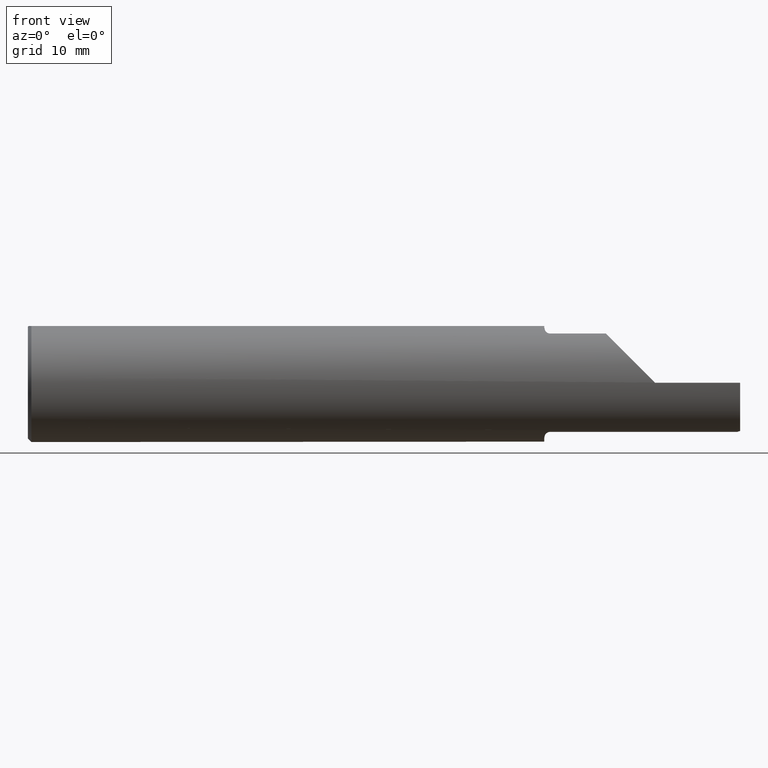
[diagram: clean part render]
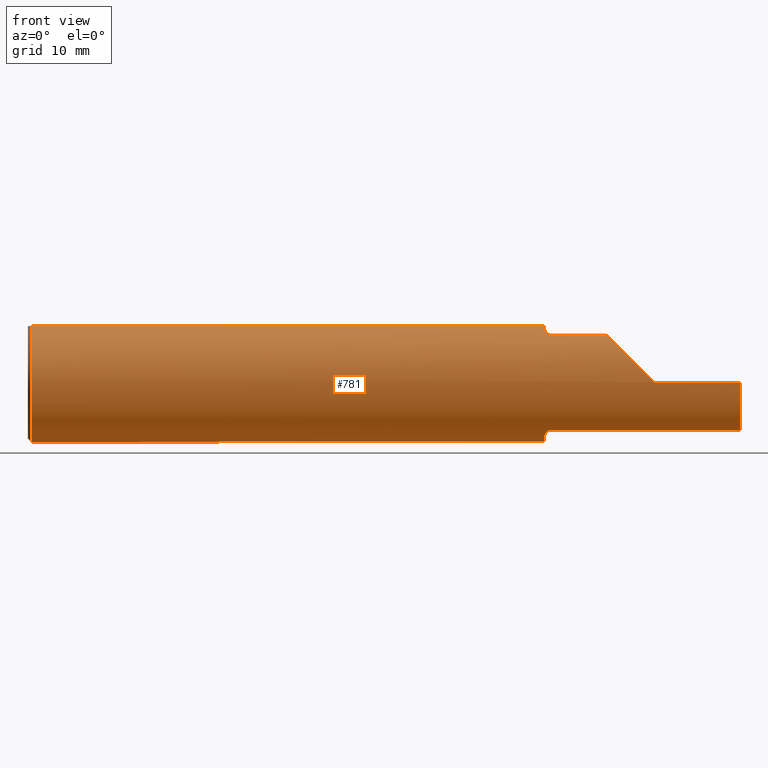
[diagram: same view with one face highlighted and labeled with its STEP entity id]
A machine part, front view. The second image highlights one B-rep face of the part: STEP entity #781.
In plain terms, the highlighted cylindrical surface (partial cylindrical patch) has radius 6.3462 mm, axis along (-1, -0, -0).
Its self-contained STEP definition (entity closure, byte-faithful):
#13 = CARTESIAN_POINT ( 'NONE',  ( 2.175000000000000266, -0.09417762792835078500, -0.2314253821274770972 ) ) ;
#21 = VERTEX_POINT ( 'NONE', #480 ) ;
#29 = VERTEX_POINT ( 'NONE', #417 ) ;
#31 = LINE ( 'NONE', #612, #525 ) ;
#35 = CARTESIAN_POINT ( 'NONE',  ( 2.183603512678597092, -0.1369436784278610930, -0.2090374349053132075 ) ) ;
#40 = DIRECTION ( 'NONE',  ( -1.000000000000000000, -0.000000000000000000, -0.000000000000000000 ) ) ;
#46 = CIRCLE ( 'NONE', #942, 0.2498499999999999888 ) ;
#52 = VERTEX_POINT ( 'NONE', #702 ) ;
#56 = VERTEX_POINT ( 'NONE', #275 ) ;
#60 = EDGE_CURVE ( 'NONE', #21, #519, #488, .T. ) ;
#64 = AXIS2_PLACEMENT_3D ( 'NONE', #726, #590, #441 ) ;
#67 = EDGE_CURVE ( 'NONE', #778, #810, #406, .T. ) ;
#68 = CARTESIAN_POINT ( 'NONE',  ( 2.175056834358316760, -0.09685000000000180964, 0.2303152187763536918 ) ) ;
#70 = CARTESIAN_POINT ( 'NONE',  ( 2.188126455499453282, -0.1431912086441300413, 0.2047622941394795781 ) ) ;
#76 = EDGE_CURVE ( 'NONE', #21, #885, #813, .T. ) ;
#88 = CARTESIAN_POINT ( 'NONE',  ( 3.000000000000000444, -0.1494886164171398690, -0.2001953447552895227 ) ) ;
#104 = AXIS2_PLACEMENT_3D ( 'NONE', #117, #40, #621 ) ;
#116 = LINE ( 'NONE', #404, #435 ) ;
#117 = CARTESIAN_POINT ( 'NONE',  ( 3.000000000000000444, 0.000000000000000000, 0.000000000000000000 ) ) ;
#122 = CIRCLE ( 'NONE', #64, 0.2498499999999999888 ) ;
#129 = CARTESIAN_POINT ( 'NONE',  ( 2.175361372780717062, -0.1075719347965366363, -0.2258065311153257260 ) ) ;
#131 = ORIENTED_EDGE ( 'NONE', *, *, #134, .T. ) ;
#132 = DIRECTION ( 'NONE',  ( 1.000000000000000000, 0.000000000000000000, 0.000000000000000000 ) ) ;
#134 = EDGE_CURVE ( 'NONE', #416, #601, #116, .T. ) ;
#158 = ORIENTED_EDGE ( 'NONE', *, *, #550, .T. ) ;
#160 = DIRECTION ( 'NONE',  ( -1.000000000000000000, -0.000000000000000000, -0.000000000000000000 ) ) ;
#173 = LINE ( 'NONE', #241, #894 ) ;
#174 = ORIENTED_EDGE ( 'NONE', *, *, #877, .T. ) ;
#182 = ORIENTED_EDGE ( 'NONE', *, *, #224, .F. ) ;
#183 = CARTESIAN_POINT ( 'NONE',  ( 2.188098364138955532, -0.1431579111149089145, -0.2047855815810830926 ) ) ;
#187 = VERTEX_POINT ( 'NONE', #733 ) ;
#189 = CARTESIAN_POINT ( 'NONE',  ( 0.01500000000000188856, 0.000000000000000000, -0.2498499999999999888 ) ) ;
#194 = ORIENTED_EDGE ( 'NONE', *, *, #76, .F. ) ;
#206 = B_SPLINE_CURVE_WITH_KNOTS ( 'NONE', 3,
 ( #780, #129, #703, #830, #35, #183, #446, #522, #736, #668 ),
 .UNSPECIFIED., .F., .F.,
 ( 4, 2, 2, 2, 4 ),
 ( 0.0001090155944137358965, 0.0009865223614607978014, 0.001425275744984329587, 0.001644652436746094504, 0.001864029128507859422 ),
 .UNSPECIFIED. ) ;
#212 = AXIS2_PLACEMENT_3D ( 'NONE', #722, #308, #657 ) ;
#224 = EDGE_CURVE ( 'NONE', #29, #452, #928, .T. ) ;
#232 = CARTESIAN_POINT ( 'NONE',  ( 2.175056834358316316, -0.09684999999998002151, -0.2303152187763627956 ) ) ;
#233 = ORIENTED_EDGE ( 'NONE', *, *, #60, .T. ) ;
#241 = CARTESIAN_POINT ( 'NONE',  ( 3.000000000000000444, -0.07331916529803135518, 0.2388499999999998957 ) ) ;
#249 = VERTEX_POINT ( 'NONE', #431 ) ;
#255 = VERTEX_POINT ( 'NONE', #302 ) ;
#256 = EDGE_CURVE ( 'NONE', #827, #601, #122, .T. ) ;
#257 = CARTESIAN_POINT ( 'NONE',  ( 2.488914555052665456, -0.2134487348307804455, 0.1524354449473348527 ) ) ;
#259 = B_SPLINE_CURVE_WITH_KNOTS ( 'NONE', 3,
 ( #935, #571, #360, #422, #70, #507, #646, #636, #862, #68 ),
 .UNSPECIFIED., .F., .F.,
 ( 4, 2, 2, 2, 4 ),
 ( 0.000000000000000000, 0.0002232479344833600363, 0.0004464958689667200727, 0.0008929917379334389527, 0.001785983475866874436 ),
 .UNSPECIFIED. ) ;
#268 = CARTESIAN_POINT ( 'NONE',  ( 2.441154655244710980, -0.1494886164171400911, 0.2001953447552893839 ) ) ;
#275 = CARTESIAN_POINT ( 'NONE',  ( 2.640000000000000124, -0.2498463527850666721, 0.001349999999999153743 ) ) ;
#276 = LINE ( 'NONE', #470, #739 ) ;
#289 = CARTESIAN_POINT ( 'NONE',  ( 2.640000000000000124, -0.2498499999999999610, -6.123031769111885058E-17 ) ) ;
#292 = AXIS2_PLACEMENT_3D ( 'NONE', #512, #509, #720 ) ;
#302 = CARTESIAN_POINT ( 'NONE',  ( 2.175056834358316760, -0.09685000000000180964, 0.2303152187763536918 ) ) ;
#308 = DIRECTION ( 'NONE',  ( 1.000000000000000000, -0.000000000000000000, -0.000000000000000000 ) ) ;
#311 = EDGE_CURVE ( 'NONE', #827, #249, #688, .T. ) ;
#315 = ORIENTED_EDGE ( 'NONE', *, *, #854, .T. ) ;
#358 = CARTESIAN_POINT ( 'NONE',  ( 2.175056834358316760, -0.09685000000000180964, 0.2303152187763536918 ) ) ;
#360 = CARTESIAN_POINT ( 'NONE',  ( 2.194274813964109061, -0.1483055201436096204, 0.2010828477691847527 ) ) ;
#381 = ORIENTED_EDGE ( 'NONE', *, *, #67, .T. ) ;
#398 = EDGE_CURVE ( 'NONE', #810, #416, #622, .T. ) ;
#404 = CARTESIAN_POINT ( 'NONE',  ( 3.000000000000000444, 0.07331916529803135518, 0.2388499999999998957 ) ) ;
#406 = CIRCLE ( 'NONE', #909, 0.2498499999999999888 ) ;
#416 = VERTEX_POINT ( 'NONE', #511 ) ;
#417 = CARTESIAN_POINT ( 'NONE',  ( 2.175000000000000266, -0.07331916529803114702, 0.2388499999999999790 ) ) ;
#418 = CARTESIAN_POINT ( 'NONE',  ( 2.441154655244710980, -0.1494886164171400911, 0.2001953447552893839 ) ) ;
#422 = CARTESIAN_POINT ( 'NONE',  ( 2.189875278575876827, -0.1451430425960587578, 0.2033773245914853312 ) ) ;
#431 = CARTESIAN_POINT ( 'NONE',  ( 2.175056834358316316, -0.09684999999998002151, -0.2303152187763627956 ) ) ;
#435 = VECTOR ( 'NONE', #132, 39.37007874015748143 ) ;
#440 = EDGE_CURVE ( 'NONE', #519, #56, #46, .T. ) ;
#441 = DIRECTION ( 'NONE',  ( 0.000000000000000000, 0.000000000000000000, -1.000000000000000000 ) ) ;
#446 = CARTESIAN_POINT ( 'NONE',  ( 2.189804601073712220, -0.1450778299404785754, -0.2034240810360764262 ) ) ;
#452 = VERTEX_POINT ( 'NONE', #549 ) ;
#468 = B_SPLINE_CURVE_WITH_KNOTS ( 'NONE', 3,
 ( #358, #653, #927, #796 ),
 .UNSPECIFIED., .F., .F.,
 ( 4, 4 ),
 ( 0.001785983475866874436, 0.001896829427359323760 ),
 .UNSPECIFIED. ) ;
#470 = CARTESIAN_POINT ( 'NONE',  ( 2.517500000000000071, -0.1494886164171399245, 0.2001953447552894949 ) ) ;
#477 = EDGE_CURVE ( 'NONE', #255, #452, #468, .T. ) ;
#480 = CARTESIAN_POINT ( 'NONE',  ( 3.000000000000000444, -0.2498499999999999055, -6.123031769111886291E-17 ) ) ;
#482 =( BOUNDED_CURVE ( )  B_SPLINE_CURVE ( 3, ( #906, #560, #257, #418 ),
 .UNSPECIFIED., .F., .F. ) 
 B_SPLINE_CURVE_WITH_KNOTS ( ( 4, 4 ),
 ( 4.717792248621494267, 5.641790718733343368 ),
 .UNSPECIFIED. ) 
 CURVE ( )  GEOMETRIC_REPRESENTATION_ITEM ( )  RATIONAL_B_SPLINE_CURVE ( ( 1.000000000000000000, 0.9301087671763463849, 0.9301087671763463849, 1.000000000000000000 ) ) 
 REPRESENTATION_ITEM ( '' )  );
#487 = ORIENTED_EDGE ( 'NONE', *, *, #607, .T. ) ;
#488 = LINE ( 'NONE', #841, #856 ) ;
#492 = DIRECTION ( 'NONE',  ( -1.000000000000000000, -0.000000000000000000, -0.000000000000000000 ) ) ;
#496 = ORIENTED_EDGE ( 'NONE', *, *, #440, .T. ) ;
#497 = DIRECTION ( 'NONE',  ( 1.000000000000000000, 0.000000000000000000, 0.000000000000000000 ) ) ;
#507 = CARTESIAN_POINT ( 'NONE',  ( 2.183621117101777198, -0.1369789607150102562, 0.2090142917562188285 ) ) ;
#509 = DIRECTION ( 'NONE',  ( 1.000000000000000000, 0.000000000000000000, 0.000000000000000000 ) ) ;
#511 = CARTESIAN_POINT ( 'NONE',  ( 0.01500000000000188856, 0.07331916529803116089, 0.2388499999999999790 ) ) ;
#512 = CARTESIAN_POINT ( 'NONE',  ( 2.175000000000000266, 0.000000000000000000, 0.000000000000000000 ) ) ;
#519 = VERTEX_POINT ( 'NONE', #289 ) ;
#522 = CARTESIAN_POINT ( 'NONE',  ( 2.194219481832199392, -0.1482797491967531300, -0.2011020871690758494 ) ) ;
#525 = VECTOR ( 'NONE', #538, 39.37007874015748143 ) ;
#526 = ORIENTED_EDGE ( 'NONE', *, *, #256, .F. ) ;
#538 = DIRECTION ( 'NONE',  ( -1.000000000000000000, -0.000000000000000000, -0.000000000000000000 ) ) ;
#548 = FACE_OUTER_BOUND ( 'NONE', #701, .T. ) ;
#549 = CARTESIAN_POINT ( 'NONE',  ( 2.175000000000000266, -0.09282883324728960495, 0.2319651487140835522 ) ) ;
#550 = EDGE_CURVE ( 'NONE', #187, #255, #259, .T. ) ;
#554 = CARTESIAN_POINT ( 'NONE',  ( 0.01500000000000188856, 0.000000000000000000, 0.000000000000000000 ) ) ;
#560 = CARTESIAN_POINT ( 'NONE',  ( 2.560176953520660437, -0.2494150432560469088, 0.08117304647933933082 ) ) ;
#571 = CARTESIAN_POINT ( 'NONE',  ( 2.197020367144870701, -0.1494886164171399245, 0.2001953447552894672 ) ) ;
#590 = DIRECTION ( 'NONE',  ( 1.000000000000000000, 0.000000000000000000, 0.000000000000000000 ) ) ;
#593 = CARTESIAN_POINT ( 'NONE',  ( 2.175000000000000266, -0.09282883324728960495, -0.2319651487140835522 ) ) ;
#601 = VERTEX_POINT ( 'NONE', #691 ) ;
#607 = EDGE_CURVE ( 'NONE', #29, #778, #173, .T. ) ;
#612 = CARTESIAN_POINT ( 'NONE',  ( 2.517500000000000071, -0.1494886164171399245, -0.2001953447552894949 ) ) ;
#621 = DIRECTION ( 'NONE',  ( 0.000000000000000000, 0.000000000000000000, 1.000000000000000000 ) ) ;
#622 = CIRCLE ( 'NONE', #212, 0.2498499999999999888 ) ;
#624 = DIRECTION ( 'NONE',  ( -1.000000000000000000, -0.000000000000000000, -0.000000000000000000 ) ) ;
#625 = ORIENTED_EDGE ( 'NONE', *, *, #477, .T. ) ;
#636 = CARTESIAN_POINT ( 'NONE',  ( 2.176763007424507013, -0.1178923264691399686, 0.2205715275921999452 ) ) ;
#646 = CARTESIAN_POINT ( 'NONE',  ( 2.181579487302563791, -0.1323357243723022603, 0.2119991103425290235 ) ) ;
#649 = EDGE_CURVE ( 'NONE', #885, #52, #31, .T. ) ;
#653 = CARTESIAN_POINT ( 'NONE',  ( 2.175018912949717720, -0.09551489467185736437, 0.2308766447720728143 ) ) ;
#657 = DIRECTION ( 'NONE',  ( 0.000000000000000000, 0.000000000000000000, -1.000000000000000000 ) ) ;
#668 = CARTESIAN_POINT ( 'NONE',  ( 2.200000000000000178, -0.1494886164171399245, -0.2001953447552894949 ) ) ;
#677 = ORIENTED_EDGE ( 'NONE', *, *, #398, .T. ) ;
#682 = VERTEX_POINT ( 'NONE', #268 ) ;
#684 = CARTESIAN_POINT ( 'NONE',  ( 2.175000000000000266, -0.09282883324728960495, -0.2319651487140835522 ) ) ;
#688 = B_SPLINE_CURVE_WITH_KNOTS ( 'NONE', 3,
 ( #593, #13, #884, #232 ),
 .UNSPECIFIED., .F., .F.,
 ( 4, 4 ),
 ( 0.000000000000000000, 0.0001090155944137358965 ),
 .UNSPECIFIED. ) ;
#691 = CARTESIAN_POINT ( 'NONE',  ( 2.175000000000000266, 0.07331916529803135518, 0.2388499999999999790 ) ) ;
#699 = CARTESIAN_POINT ( 'NONE',  ( 3.000000000000000444, 0.000000000000000000, 0.000000000000000000 ) ) ;
#701 = EDGE_LOOP ( 'NONE', ( #889, #194, #233, #496, #315, #737, #158, #625, #182, #487, #381, #677, #131, #526, #934, #174 ) ) ;
#702 = CARTESIAN_POINT ( 'NONE',  ( 2.200000000000000178, -0.1494886164171399245, -0.2001953447552894949 ) ) ;
#703 = CARTESIAN_POINT ( 'NONE',  ( 2.176742824673065346, -0.1177739016850215953, -0.2206342839570611114 ) ) ;
#706 = DIRECTION ( 'NONE',  ( 0.000000000000000000, 0.000000000000000000, -1.000000000000000000 ) ) ;
#708 = AXIS2_PLACEMENT_3D ( 'NONE', #699, #497, #706 ) ;
#720 = DIRECTION ( 'NONE',  ( 0.000000000000000000, 0.000000000000000000, -1.000000000000000000 ) ) ;
#722 = CARTESIAN_POINT ( 'NONE',  ( 0.01500000000000188856, 0.000000000000000000, 0.000000000000000000 ) ) ;
#726 = CARTESIAN_POINT ( 'NONE',  ( 2.175000000000000266, 0.000000000000000000, 0.000000000000000000 ) ) ;
#733 = CARTESIAN_POINT ( 'NONE',  ( 2.200000000000000178, -0.1494886164171399245, 0.2001953447552894949 ) ) ;
#736 = CARTESIAN_POINT ( 'NONE',  ( 2.197000154949639850, -0.1494886164171400356, -0.2001953447552894672 ) ) ;
#737 = ORIENTED_EDGE ( 'NONE', *, *, #745, .F. ) ;
#739 = VECTOR ( 'NONE', #769, 39.37007874015748143 ) ;
#741 = DIRECTION ( 'NONE',  ( 0.000000000000000000, 0.000000000000000000, 1.000000000000000000 ) ) ;
#745 = EDGE_CURVE ( 'NONE', #187, #682, #276, .T. ) ;
#764 = CYLINDRICAL_SURFACE ( 'NONE', #104, 0.2498499999999999888 ) ;
#769 = DIRECTION ( 'NONE',  ( 1.000000000000000000, 0.000000000000000000, 0.000000000000000000 ) ) ;
#778 = VERTEX_POINT ( 'NONE', #923 ) ;
#780 = CARTESIAN_POINT ( 'NONE',  ( 2.175056834358316316, -0.09684999999998002151, -0.2303152187763627956 ) ) ;
#781 = ADVANCED_FACE ( 'NONE', ( #548 ), #764, .T. ) ;
#796 = CARTESIAN_POINT ( 'NONE',  ( 2.175000000000000266, -0.09282883324728960495, 0.2319651487140835522 ) ) ;
#810 = VERTEX_POINT ( 'NONE', #189 ) ;
#811 = CARTESIAN_POINT ( 'NONE',  ( 2.640000000000000124, 0.000000000000000000, 0.000000000000000000 ) ) ;
#813 = CIRCLE ( 'NONE', #708, 0.2498499999999999888 ) ;
#827 = VERTEX_POINT ( 'NONE', #684 ) ;
#830 = CARTESIAN_POINT ( 'NONE',  ( 2.181527936142123814, -0.1322095316791235264, -0.2120777013314376347 ) ) ;
#841 = CARTESIAN_POINT ( 'NONE',  ( 3.000000000000000444, -0.2498499999999999610, -6.123031769111886291E-17 ) ) ;
#846 = DIRECTION ( 'NONE',  ( 1.000000000000000000, -0.000000000000000000, -0.000000000000000000 ) ) ;
#854 = EDGE_CURVE ( 'NONE', #56, #682, #482, .T. ) ;
#856 = VECTOR ( 'NONE', #492, 39.37007874015748143 ) ;
#861 = DIRECTION ( 'NONE',  ( 0.000000000000000000, 0.000000000000000000, -1.000000000000000000 ) ) ;
#862 = CARTESIAN_POINT ( 'NONE',  ( 2.175362334957245736, -0.1076058103047661113, 0.2257922861036848194 ) ) ;
#877 = EDGE_CURVE ( 'NONE', #249, #52, #206, .T. ) ;
#884 = CARTESIAN_POINT ( 'NONE',  ( 2.175019000533665370, -0.09551797825495939032, -0.2308753480925707924 ) ) ;
#885 = VERTEX_POINT ( 'NONE', #88 ) ;
#889 = ORIENTED_EDGE ( 'NONE', *, *, #649, .F. ) ;
#894 = VECTOR ( 'NONE', #624, 39.37007874015748143 ) ;
#906 = CARTESIAN_POINT ( 'NONE',  ( 2.640000000000000124, -0.2498463527850666721, 0.001349999999999153743 ) ) ;
#909 = AXIS2_PLACEMENT_3D ( 'NONE', #554, #846, #861 ) ;
#923 = CARTESIAN_POINT ( 'NONE',  ( 0.01500000000000188509, -0.07331916529803116089, 0.2388499999999999790 ) ) ;
#927 = CARTESIAN_POINT ( 'NONE',  ( 2.175000000000000266, -0.09417450869096334609, 0.2314266303976112160 ) ) ;
#928 = CIRCLE ( 'NONE', #292, 0.2498499999999999888 ) ;
#934 = ORIENTED_EDGE ( 'NONE', *, *, #311, .T. ) ;
#935 = CARTESIAN_POINT ( 'NONE',  ( 2.200000000000000178, -0.1494886164171399245, 0.2001953447552894949 ) ) ;
#942 = AXIS2_PLACEMENT_3D ( 'NONE', #811, #160, #741 ) ;